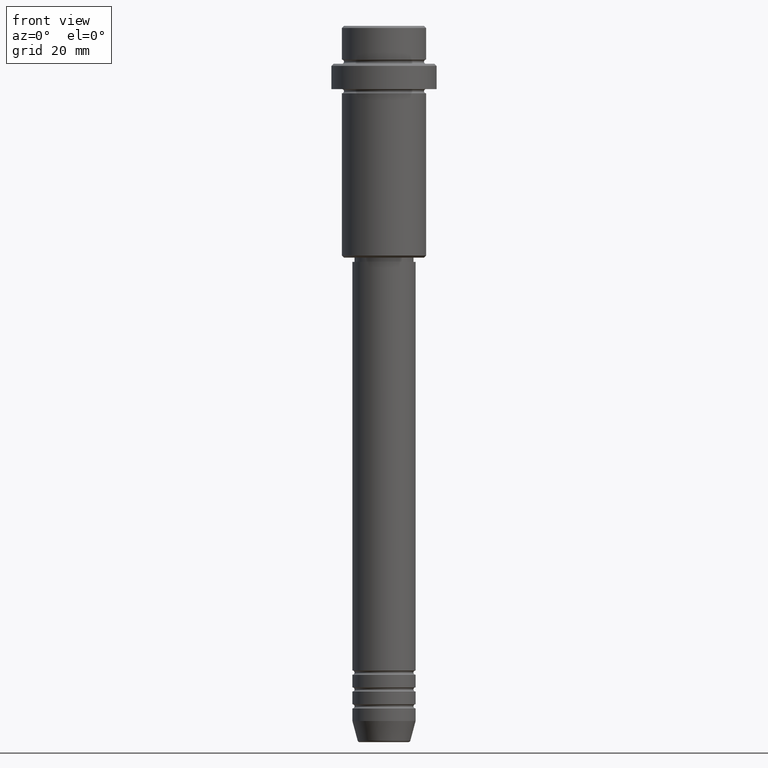
[diagram: clean part render]
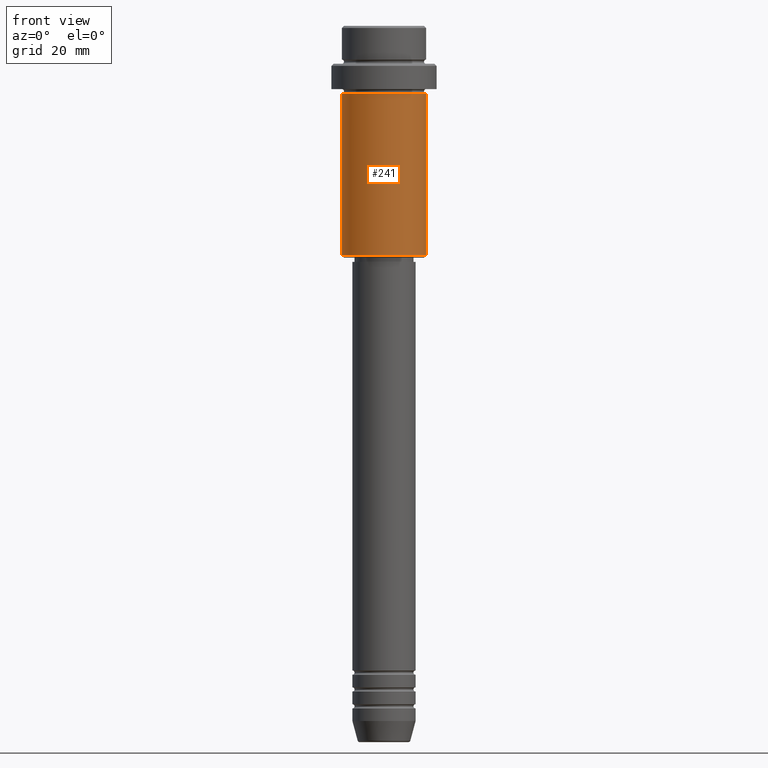
[diagram: same view with one face highlighted and labeled with its STEP entity id]
A machine part, front view. The second image highlights one B-rep face of the part: STEP entity #241.
In plain terms, the highlighted cylindrical surface (partial cylindrical patch) has radius 10 mm, axis along (-0, -0, 1).
Its self-contained STEP definition (entity closure, byte-faithful):
#7 = EDGE_LOOP ( 'NONE', ( #766, #157, #1370, #461 ) ) ;
#56 = AXIS2_PLACEMENT_3D ( 'NONE', #392, #1388, #612 ) ;
#126 = CYLINDRICAL_SURFACE ( 'NONE', #273, 10.00000000000000000 ) ;
#131 = VERTEX_POINT ( 'NONE', #211 ) ;
#157 = ORIENTED_EDGE ( 'NONE', *, *, #513, .T. ) ;
#159 = EDGE_CURVE ( 'NONE', #667, #131, #1198, .T. ) ;
#160 = DIRECTION ( 'NONE',  ( -0.000000000000000000, -0.000000000000000000, 1.000000000000000000 ) ) ;
#211 = CARTESIAN_POINT ( 'NONE',  ( 10.00000000000000000, 0.000000000000000000, -16.00000000000000000 ) ) ;
#241 = ADVANCED_FACE ( 'NONE', ( #647 ), #126, .T. ) ;
#273 = AXIS2_PLACEMENT_3D ( 'NONE', #1218, #1391, #777 ) ;
#304 = LINE ( 'NONE', #429, #460 ) ;
#341 = VERTEX_POINT ( 'NONE', #1393 ) ;
#392 = CARTESIAN_POINT ( 'NONE',  ( 0.000000000000000000, 0.000000000000000000, -16.00000000000000000 ) ) ;
#429 = CARTESIAN_POINT ( 'NONE',  ( -10.00000000000000000, 1.224646799147353256E-15, 0.000000000000000000 ) ) ;
#441 = DIRECTION ( 'NONE',  ( -1.000000000000000000, 0.000000000000000000, 0.000000000000000000 ) ) ;
#445 = EDGE_CURVE ( 'NONE', #341, #782, #304, .T. ) ;
#460 = VECTOR ( 'NONE', #882, 1000.000000000000000 ) ;
#461 = ORIENTED_EDGE ( 'NONE', *, *, #731, .F. ) ;
#479 = VECTOR ( 'NONE', #160, 1000.000000000000000 ) ;
#496 = CARTESIAN_POINT ( 'NONE',  ( -10.00000000000000000, 1.224646799147353256E-15, -16.00000000000000000 ) ) ;
#513 = EDGE_CURVE ( 'NONE', #341, #667, #1025, .T. ) ;
#588 = CARTESIAN_POINT ( 'NONE',  ( 10.00000000000000000, 0.000000000000000000, -54.49999999999994316 ) ) ;
#612 = DIRECTION ( 'NONE',  ( 1.000000000000000000, 0.000000000000000000, 0.000000000000000000 ) ) ;
#641 = CARTESIAN_POINT ( 'NONE',  ( 10.00000000000000000, 0.000000000000000000, 0.000000000000000000 ) ) ;
#646 = CIRCLE ( 'NONE', #56, 10.00000000000000000 ) ;
#647 = FACE_OUTER_BOUND ( 'NONE', #7, .T. ) ;
#667 = VERTEX_POINT ( 'NONE', #588 ) ;
#731 = EDGE_CURVE ( 'NONE', #782, #131, #646, .T. ) ;
#766 = ORIENTED_EDGE ( 'NONE', *, *, #445, .F. ) ;
#777 = DIRECTION ( 'NONE',  ( 1.000000000000000000, 0.000000000000000000, 0.000000000000000000 ) ) ;
#782 = VERTEX_POINT ( 'NONE', #496 ) ;
#873 = CARTESIAN_POINT ( 'NONE',  ( 0.000000000000000000, 0.000000000000000000, -54.49999999999994316 ) ) ;
#882 = DIRECTION ( 'NONE',  ( -0.000000000000000000, -0.000000000000000000, 1.000000000000000000 ) ) ;
#1002 = DIRECTION ( 'NONE',  ( -0.000000000000000000, -0.000000000000000000, 1.000000000000000000 ) ) ;
#1025 = CIRCLE ( 'NONE', #1385, 10.00000000000000000 ) ;
#1198 = LINE ( 'NONE', #641, #479 ) ;
#1218 = CARTESIAN_POINT ( 'NONE',  ( 0.000000000000000000, 0.000000000000000000, 0.000000000000000000 ) ) ;
#1370 = ORIENTED_EDGE ( 'NONE', *, *, #159, .T. ) ;
#1385 = AXIS2_PLACEMENT_3D ( 'NONE', #873, #1002, #441 ) ;
#1388 = DIRECTION ( 'NONE',  ( -0.000000000000000000, -0.000000000000000000, 1.000000000000000000 ) ) ;
#1391 = DIRECTION ( 'NONE',  ( -0.000000000000000000, -0.000000000000000000, 1.000000000000000000 ) ) ;
#1393 = CARTESIAN_POINT ( 'NONE',  ( -10.00000000000000000, 1.224646799147353256E-15, -54.49999999999994316 ) ) ;